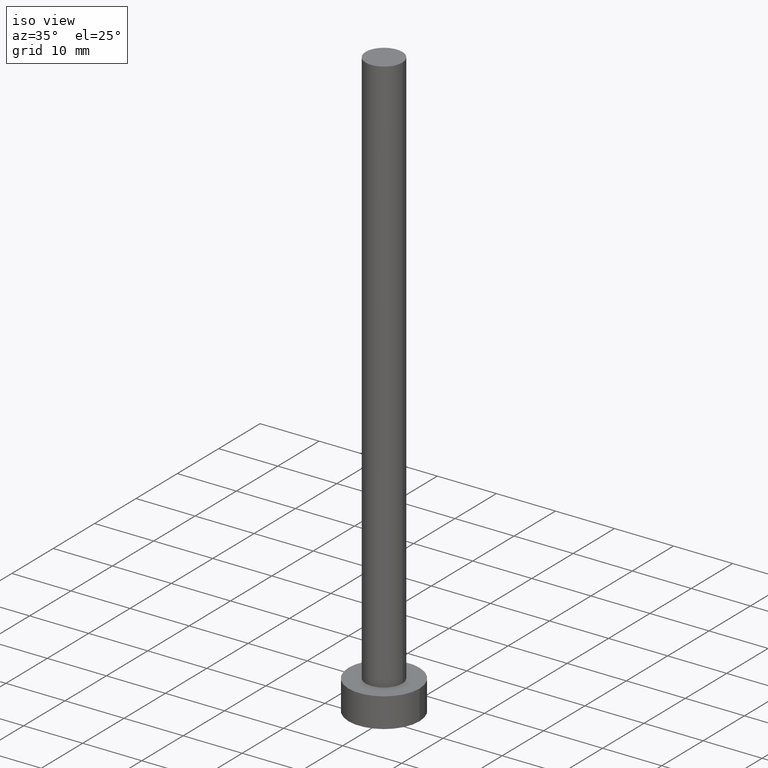
[diagram: clean part render]
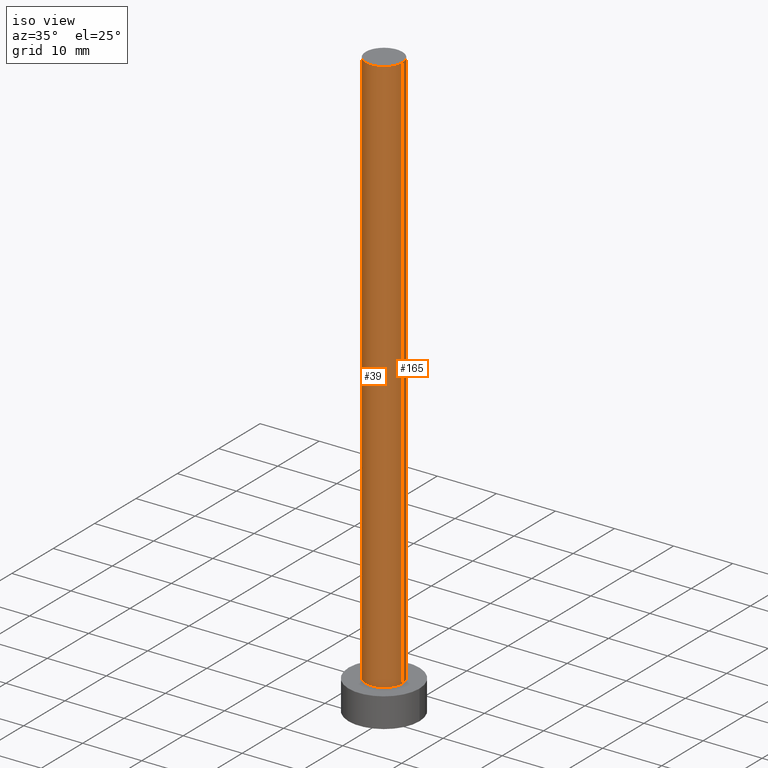
[diagram: same view with one multi-face feature highlighted, each face labeled with its STEP entity id]
A machine part, iso view. The highlighted faces form ONE feature: a constant-radius fillet chain: 2 tangent blend faces with common blend radius 3.1 mm. The faces share edges in the B-rep.
Their STEP definitions:
[1] entity #39 (Cylinder):
#1 = CYLINDRICAL_SURFACE ( 'NONE', #151, 3.100000000000000089 ) ;
#6 = DIRECTION ( 'NONE',  ( -1.000000000000000000, 0.000000000000000000, 0.000000000000000000 ) ) ;
#22 = ORIENTED_EDGE ( 'NONE', *, *, #255, .F. ) ;
#27 = LINE ( 'NONE', #150, #186 ) ;
#31 = DIRECTION ( 'NONE',  ( -0.000000000000000000, -0.000000000000000000, -1.000000000000000000 ) ) ;
#39 = ADVANCED_FACE ( 'NONE', ( #179 ), #1, .T. ) ;
#49 = CARTESIAN_POINT ( 'NONE',  ( 3.100000000000000089, 3.796405077356794918E-16, 5.000000000000000000 ) ) ;
#51 = DIRECTION ( 'NONE',  ( 0.000000000000000000, 0.000000000000000000, 1.000000000000000000 ) ) ;
#53 = AXIS2_PLACEMENT_3D ( 'NONE', #204, #146, #166 ) ;
#79 = DIRECTION ( 'NONE',  ( -0.000000000000000000, -0.000000000000000000, -1.000000000000000000 ) ) ;
#81 = VERTEX_POINT ( 'NONE', #49 ) ;
#86 = CARTESIAN_POINT ( 'NONE',  ( -3.100000000000000089, 0.000000000000000000, 5.000000000000000000 ) ) ;
#89 = CARTESIAN_POINT ( 'NONE',  ( -3.100000000000000089, 0.000000000000000000, 100.0000000000000000 ) ) ;
#100 = EDGE_CURVE ( 'NONE', #238, #81, #228, .T. ) ;
#101 = EDGE_CURVE ( 'NONE', #217, #81, #27, .T. ) ;
#102 = EDGE_LOOP ( 'NONE', ( #143, #22, #117, #157 ) ) ;
#117 = ORIENTED_EDGE ( 'NONE', *, *, #196, .T. ) ;
#129 = DIRECTION ( 'NONE',  ( 1.000000000000000000, 0.000000000000000000, 0.000000000000000000 ) ) ;
#134 = VECTOR ( 'NONE', #248, 1000.000000000000000 ) ;
#143 = ORIENTED_EDGE ( 'NONE', *, *, #101, .F. ) ;
#146 = DIRECTION ( 'NONE',  ( 0.000000000000000000, 0.000000000000000000, 1.000000000000000000 ) ) ;
#149 = LINE ( 'NONE', #163, #134 ) ;
#150 = CARTESIAN_POINT ( 'NONE',  ( 3.100000000000000089, 3.796405077356794918E-16, 100.0000000000000000 ) ) ;
#151 = AXIS2_PLACEMENT_3D ( 'NONE', #180, #79, #6 ) ;
#157 = ORIENTED_EDGE ( 'NONE', *, *, #100, .T. ) ;
#160 = VERTEX_POINT ( 'NONE', #89 ) ;
#163 = CARTESIAN_POINT ( 'NONE',  ( -3.100000000000000089, 0.000000000000000000, 100.0000000000000000 ) ) ;
#166 = DIRECTION ( 'NONE',  ( 1.000000000000000000, 0.000000000000000000, 0.000000000000000000 ) ) ;
#174 = CIRCLE ( 'NONE', #230, 3.100000000000000089 ) ;
#179 = FACE_OUTER_BOUND ( 'NONE', #102, .T. ) ;
#180 = CARTESIAN_POINT ( 'NONE',  ( 0.000000000000000000, 0.000000000000000000, 100.0000000000000000 ) ) ;
#186 = VECTOR ( 'NONE', #31, 1000.000000000000000 ) ;
#188 = CARTESIAN_POINT ( 'NONE',  ( 0.000000000000000000, 0.000000000000000000, 100.0000000000000000 ) ) ;
#196 = EDGE_CURVE ( 'NONE', #160, #238, #149, .T. ) ;
#204 = CARTESIAN_POINT ( 'NONE',  ( 0.000000000000000000, 0.000000000000000000, 5.000000000000000000 ) ) ;
#205 = CARTESIAN_POINT ( 'NONE',  ( 3.100000000000000089, 3.796405077356794918E-16, 100.0000000000000000 ) ) ;
#217 = VERTEX_POINT ( 'NONE', #205 ) ;
#228 = CIRCLE ( 'NONE', #53, 3.100000000000000089 ) ;
#230 = AXIS2_PLACEMENT_3D ( 'NONE', #188, #51, #129 ) ;
#238 = VERTEX_POINT ( 'NONE', #86 ) ;
#248 = DIRECTION ( 'NONE',  ( -0.000000000000000000, -0.000000000000000000, -1.000000000000000000 ) ) ;
#255 = EDGE_CURVE ( 'NONE', #160, #217, #174, .T. ) ;
[2] entity #165 (Cylinder):
#10 = DIRECTION ( 'NONE',  ( -0.000000000000000000, -0.000000000000000000, -1.000000000000000000 ) ) ;
#20 = ORIENTED_EDGE ( 'NONE', *, *, #196, .F. ) ;
#27 = LINE ( 'NONE', #150, #186 ) ;
#31 = DIRECTION ( 'NONE',  ( -0.000000000000000000, -0.000000000000000000, -1.000000000000000000 ) ) ;
#42 = ORIENTED_EDGE ( 'NONE', *, *, #101, .T. ) ;
#48 = CARTESIAN_POINT ( 'NONE',  ( 0.000000000000000000, 0.000000000000000000, 100.0000000000000000 ) ) ;
#49 = CARTESIAN_POINT ( 'NONE',  ( 3.100000000000000089, 3.796405077356794918E-16, 5.000000000000000000 ) ) ;
#58 = DIRECTION ( 'NONE',  ( 0.000000000000000000, 0.000000000000000000, 1.000000000000000000 ) ) ;
#60 = ORIENTED_EDGE ( 'NONE', *, *, #85, .T. ) ;
#63 = EDGE_LOOP ( 'NONE', ( #96, #42, #60, #20 ) ) ;
#66 = EDGE_CURVE ( 'NONE', #217, #160, #67, .T. ) ;
#67 = CIRCLE ( 'NONE', #127, 3.100000000000000089 ) ;
#70 = DIRECTION ( 'NONE',  ( 1.000000000000000000, 0.000000000000000000, 0.000000000000000000 ) ) ;
#71 = CARTESIAN_POINT ( 'NONE',  ( 0.000000000000000000, 0.000000000000000000, 5.000000000000000000 ) ) ;
#81 = VERTEX_POINT ( 'NONE', #49 ) ;
#85 = EDGE_CURVE ( 'NONE', #81, #238, #144, .T. ) ;
#86 = CARTESIAN_POINT ( 'NONE',  ( -3.100000000000000089, 0.000000000000000000, 5.000000000000000000 ) ) ;
#88 = AXIS2_PLACEMENT_3D ( 'NONE', #48, #10, #126 ) ;
#89 = CARTESIAN_POINT ( 'NONE',  ( -3.100000000000000089, 0.000000000000000000, 100.0000000000000000 ) ) ;
#96 = ORIENTED_EDGE ( 'NONE', *, *, #66, .F. ) ;
#101 = EDGE_CURVE ( 'NONE', #217, #81, #27, .T. ) ;
#126 = DIRECTION ( 'NONE',  ( -1.000000000000000000, 0.000000000000000000, 0.000000000000000000 ) ) ;
#127 = AXIS2_PLACEMENT_3D ( 'NONE', #235, #58, #136 ) ;
#134 = VECTOR ( 'NONE', #248, 1000.000000000000000 ) ;
#136 = DIRECTION ( 'NONE',  ( 1.000000000000000000, 0.000000000000000000, 0.000000000000000000 ) ) ;
#144 = CIRCLE ( 'NONE', #240, 3.100000000000000089 ) ;
#149 = LINE ( 'NONE', #163, #134 ) ;
#150 = CARTESIAN_POINT ( 'NONE',  ( 3.100000000000000089, 3.796405077356794918E-16, 100.0000000000000000 ) ) ;
#160 = VERTEX_POINT ( 'NONE', #89 ) ;
#163 = CARTESIAN_POINT ( 'NONE',  ( -3.100000000000000089, 0.000000000000000000, 100.0000000000000000 ) ) ;
#164 = DIRECTION ( 'NONE',  ( 0.000000000000000000, 0.000000000000000000, 1.000000000000000000 ) ) ;
#165 = ADVANCED_FACE ( 'NONE', ( #183 ), #242, .T. ) ;
#183 = FACE_OUTER_BOUND ( 'NONE', #63, .T. ) ;
#186 = VECTOR ( 'NONE', #31, 1000.000000000000000 ) ;
#196 = EDGE_CURVE ( 'NONE', #160, #238, #149, .T. ) ;
#205 = CARTESIAN_POINT ( 'NONE',  ( 3.100000000000000089, 3.796405077356794918E-16, 100.0000000000000000 ) ) ;
#217 = VERTEX_POINT ( 'NONE', #205 ) ;
#235 = CARTESIAN_POINT ( 'NONE',  ( 0.000000000000000000, 0.000000000000000000, 100.0000000000000000 ) ) ;
#238 = VERTEX_POINT ( 'NONE', #86 ) ;
#240 = AXIS2_PLACEMENT_3D ( 'NONE', #71, #164, #70 ) ;
#242 = CYLINDRICAL_SURFACE ( 'NONE', #88, 3.100000000000000089 ) ;
#248 = DIRECTION ( 'NONE',  ( -0.000000000000000000, -0.000000000000000000, -1.000000000000000000 ) ) ;